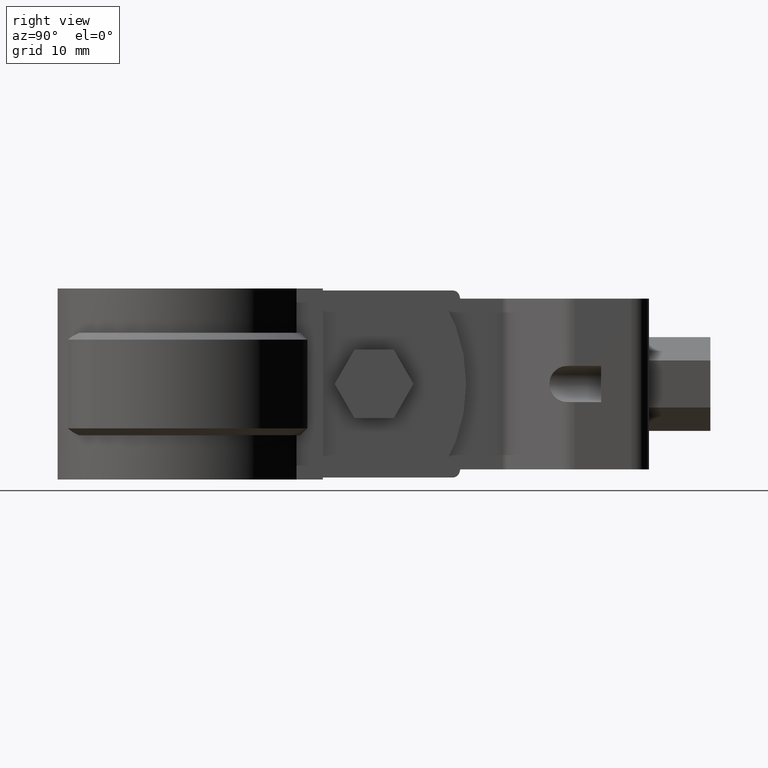
[diagram: clean part render]
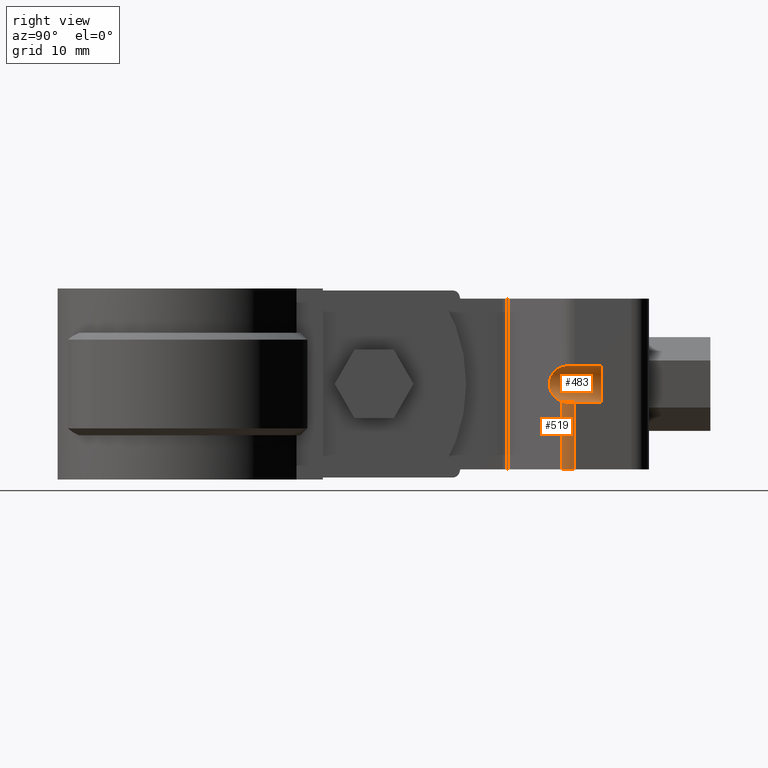
[diagram: same view with one multi-face feature highlighted, each face labeled with its STEP entity id]
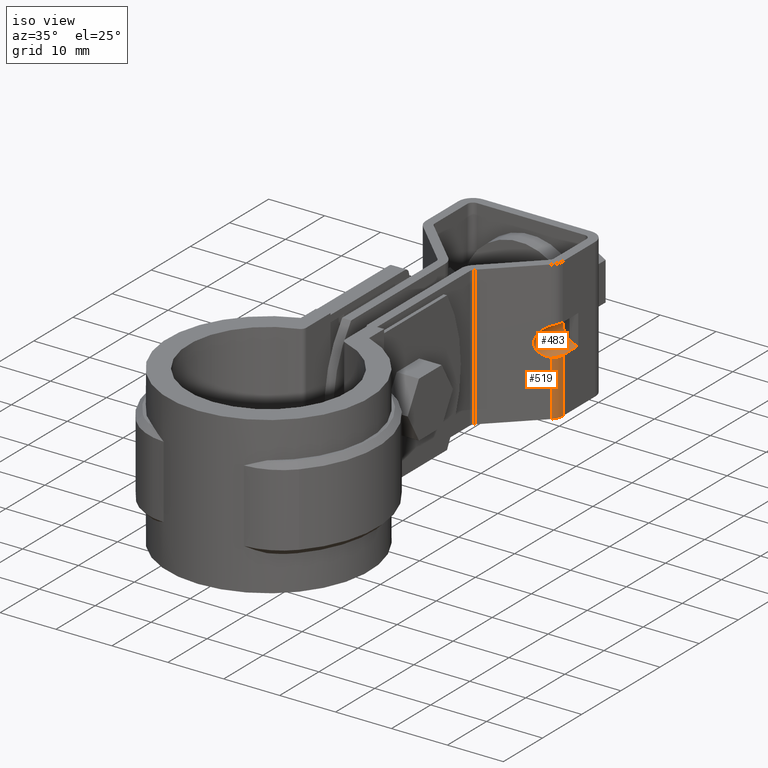
[diagram: same view with one multi-face feature highlighted, each face labeled with its STEP entity id]
A machine part, right view. The highlighted faces form ONE feature: a constant-radius fillet chain: 2 tangent blend faces with common blend radius 2.625 mm. The faces share edges in the B-rep.
A second angle (iso view) of the same feature is appended — it is thin or edge-on in the first view.
Their STEP definitions:
[1] entity #483 (Cylinder):
#483 = ADVANCED_FACE( '', ( #938 ), #939, .F. );
#938 = FACE_OUTER_BOUND( '', #2075, .T. );
#939 = CYLINDRICAL_SURFACE( '', #2076, 2.64999999999997 );
#2075 = EDGE_LOOP( '', ( #4764, #4765, #4766, #4767, #4768, #4769, #4770, #4771 ) );
#2076 = AXIS2_PLACEMENT_3D( '', #4772, #4773, #4774 );
#4764 = ORIENTED_EDGE( '', *, *, #6833, .F. );
#4765 = ORIENTED_EDGE( '', *, *, #6834, .F. );
#4766 = ORIENTED_EDGE( '', *, *, #6835, .T. );
#4767 = ORIENTED_EDGE( '', *, *, #6836, .T. );
#4768 = ORIENTED_EDGE( '', *, *, #6837, .T. );
#4769 = ORIENTED_EDGE( '', *, *, #6838, .T. );
#4770 = ORIENTED_EDGE( '', *, *, #6839, .F. );
#4771 = ORIENTED_EDGE( '', *, *, #6840, .F. );
#4772 = CARTESIAN_POINT( '', ( 12.2500001018538, 51.6019465683729, -12.4999999833285 ) );
#4773 = DIRECTION( '', ( -7.94778790044289E-010, -1.00000000000000, -1.31468003180933E-010 ) );
#4774 = DIRECTION( '', ( -3.82343921266954E-011, -1.31468003150545E-010, 1.00000000000000 ) );
#6833 = EDGE_CURVE( '', #8004, #8005, #8006, .T. );
#6834 = EDGE_CURVE( '', #8007, #8004, #8008, .T. );
#6835 = EDGE_CURVE( '', #8007, #8009, #8010, .T. );
#6836 = EDGE_CURVE( '', #8009, #8011, #8012, .T. );
#6837 = EDGE_CURVE( '', #8011, #8013, #8014, .T. );
#6838 = EDGE_CURVE( '', #8013, #8015, #8016, .T. );
#6839 = EDGE_CURVE( '', #8017, #8015, #8018, .T. );
#6840 = EDGE_CURVE( '', #8005, #8017, #8019, .T. );
#8004 = VERTEX_POINT( '', #11061 );
#8005 = VERTEX_POINT( '', #11062 );
#8006 = ELLIPSE( '', #11063, 3.70224472166266, 2.64999999999997 );
#8007 = VERTEX_POINT( '', #11064 );
#8008 = B_SPLINE_CURVE_WITH_KNOTS( '', 3, ( #11065, #11066, #11067, #11068, #11069, #11070, #11071, #11072, #11073, #11074 ), .UNSPECIFIED., .F., .F., ( 4, 2, 2, 2, 4 ), ( 0.000000000000000, 0.000517346174284563, 0.00103469234856913, 0.00155203852285369, 0.00206938469713825 ), .UNSPECIFIED. );
#8009 = VERTEX_POINT( '', #11075 );
#8010 = LINE( '', #11076, #11077 );
#8011 = VERTEX_POINT( '', #11078 );
#8012 = CIRCLE( '', #11079, 2.64999999999997 );
#8013 = VERTEX_POINT( '', #11080 );
#8014 = CIRCLE( '', #11081, 2.64999999999997 );
#8015 = VERTEX_POINT( '', #11082 );
#8016 = CIRCLE( '', #11083, 2.64999999999997 );
#8017 = VERTEX_POINT( '', #11084 );
#8018 = LINE( '', #11085, #11086 );
#8019 = B_SPLINE_CURVE_WITH_KNOTS( '', 3, ( #11087, #11088, #11089, #11090, #11091, #11092, #11093, #11094 ), .UNSPECIFIED., .F., .F., ( 4, 2, 2, 4 ), ( 1.73472347597677E-018, 0.000516787748161303, 0.00103357549632260, 0.00206715099264519 ), .UNSPECIFIED. );
#11061 = CARTESIAN_POINT( '', ( 11.4656420776956, 55.8367192606953, -15.0312610291000 ) );
#11062 = CARTESIAN_POINT( '', ( 11.4656420775021, 55.8367192600298, -9.96873893650349 ) );
#11063 = AXIS2_PLACEMENT_3D( '', #12918, #12919, #12920 );
#11064 = CARTESIAN_POINT( '', ( 12.2500001067999, 57.6977523678356, -15.1499999825271 ) );
#11065 = CARTESIAN_POINT( '', ( 12.2500001067999, 57.6977523678356, -15.1499999825271 ) );
#11066 = CARTESIAN_POINT( '', ( 12.2500001066609, 57.5228623035874, -15.1499999825500 ) );
#11067 = CARTESIAN_POINT( '', ( 12.2325331419325, 57.3509198956958, -15.1501636785781 ) );
#11068 = CARTESIAN_POINT( '', ( 12.1640564587030, 57.0127047057419, -15.1488273457981 ) );
#11069 = CARTESIAN_POINT( '', ( 12.1121298178247, 56.8445738575010, -15.1472759355092 ) );
#11070 = CARTESIAN_POINT( '', ( 11.9772120419526, 56.5255404023730, -15.1367906189000 ) );
#11071 = CARTESIAN_POINT( '', ( 11.8947255762084, 56.3745291830860, -15.1279277661973 ) );
#11072 = CARTESIAN_POINT( '', ( 11.7003963091689, 56.0897761734176, -15.0942551925598 ) );
#11073 = CARTESIAN_POINT( '', ( 11.5880225352707, 55.9561148233539, -15.0691828761320 ) );
#11074 = CARTESIAN_POINT( '', ( 11.4656420776956, 55.8367192606953, -15.0312610291000 ) );
#11075 = CARTESIAN_POINT( '', ( 12.2500001099029, 61.6019465687213, -15.1499999820138 ) );
#11076 = CARTESIAN_POINT( '', ( 12.2500001019551, 51.6019465687213, -15.1499999833285 ) );
#11077 = VECTOR( '', #12921, 1000.00000000000 );
#11078 = CARTESIAN_POINT( '', ( 10.6500001098824, 61.6019465699223, -14.6124629995027 ) );
#11079 = AXIS2_PLACEMENT_3D( '', #12922, #12923, #12924 );
#11080 = CARTESIAN_POINT( '', ( 10.6500001097209, 61.6019465693669, -10.3875369646472 ) );
#11081 = AXIS2_PLACEMENT_3D( '', #12925, #12926, #12927 );
#11082 = CARTESIAN_POINT( '', ( 12.2500001097004, 61.6019465680245, -9.84999998201383 ) );
#11083 = AXIS2_PLACEMENT_3D( '', #12928, #12929, #12930 );
#11084 = CARTESIAN_POINT( '', ( 12.2500001065974, 57.6977523671389, -9.84999998252711 ) );
#11085 = CARTESIAN_POINT( '', ( 12.2500001017526, 51.6019465680245, -9.84999998332851 ) );
#11086 = VECTOR( '', #12931, 1000.00000000000 );
#11087 = CARTESIAN_POINT( '', ( 11.4656420775021, 55.8367192600298, -9.96873893650348 ) );
#11088 = CARTESIAN_POINT( '', ( 11.5880008646473, 55.9560936807993, -9.93082380441315 ) );
#11089 = CARTESIAN_POINT( '', ( 11.6979910779007, 56.0867926460779, -9.90626131295006 ) );
#11090 = CARTESIAN_POINT( '', ( 11.8919854055865, 56.3699872667846, -9.87244984461446 ) );
#11091 = CARTESIAN_POINT( '', ( 11.9765771514112, 56.5243124652492, -9.86327471480884 ) );
#11092 = CARTESIAN_POINT( '', ( 12.1789957085563, 57.0021453969263, -9.84749562327332 ) );
#11093 = CARTESIAN_POINT( '', ( 12.2500001063196, 57.3482105250917, -9.84999998257307 ) );
#11094 = CARTESIAN_POINT( '', ( 12.2500001065974, 57.6977523671389, -9.84999998252711 ) );
#12918 = CARTESIAN_POINT( '', ( 12.2500001058277, 56.6019465683731, -12.4999999826712 ) );
#12919 = DIRECTION( '', ( -0.698323834961609, 0.715781965073521, 6.74171070251485E-011 ) );
#12920 = DIRECTION( '', ( 0.715781965073521, 0.698323834961609, 1.19159693022799E-010 ) );
#12921 = DIRECTION( '', ( 7.94778790044288E-010, 1.00000000000000, 1.31468003180933E-010 ) );
#12922 = CARTESIAN_POINT( '', ( 12.2500001098016, 61.6019465683729, -12.4999999820138 ) );
#12923 = DIRECTION( '', ( 7.94778790044288E-010, 1.00000000000000, 1.31468003180933E-010 ) );
#12924 = DIRECTION( '', ( -3.82127899098248E-011, -1.31468003150563E-010, 1.00000000000000 ) );
#12925 = CARTESIAN_POINT( '', ( 12.2500001098016, 61.6019465683729, -12.4999999820138 ) );
#12926 = DIRECTION( '', ( 7.94778790044288E-010, 1.00000000000000, 1.31468003180933E-010 ) );
#12927 = DIRECTION( '', ( -3.82127899098248E-011, -1.31468003150563E-010, 1.00000000000000 ) );
#12928 = CARTESIAN_POINT( '', ( 12.2500001098016, 61.6019465683729, -12.4999999820138 ) );
#12929 = DIRECTION( '', ( 7.94778790044288E-010, 1.00000000000000, 1.31468003180933E-010 ) );
#12930 = DIRECTION( '', ( -3.82127899098248E-011, -1.31468003150563E-010, 1.00000000000000 ) );
#12931 = DIRECTION( '', ( 7.94778790044288E-010, 1.00000000000000, 1.31468003180933E-010 ) );
[2] entity #519 (Cylinder):
#519 = ADVANCED_FACE( '', ( #1016 ), #1017, .T. );
#1016 = FACE_OUTER_BOUND( '', #2153, .T. );
#1017 = CYLINDRICAL_SURFACE( '', #2154, 2.59999999999999 );
#2153 = EDGE_LOOP( '', ( #5080, #5081, #5082, #5083 ) );
#2154 = AXIS2_PLACEMENT_3D( '', #5084, #5085, #5086 );
#5080 = ORIENTED_EDGE( '', *, *, #6926, .T. );
#5081 = ORIENTED_EDGE( '', *, *, #6919, .T. );
#5082 = ORIENTED_EDGE( '', *, *, #6853, .F. );
#5083 = ORIENTED_EDGE( '', *, *, #6834, .T. );
#5084 = CARTESIAN_POINT( '', ( 9.65000010622100, 57.6977523679104, 1.73735609232395E-008 ) );
#5085 = DIRECTION( '', ( -3.82133362428794E-011, -1.31468003150562E-010, 1.00000000000000 ) );
#5086 = DIRECTION( '', ( 7.94778790044289E-010, 1.00000000000000, 1.31468003180933E-010 ) );
#6834 = EDGE_CURVE( '', #8007, #8004, #8008, .T. );
#6853 = EDGE_CURVE( '', #8007, #8038, #8039, .T. );
#6919 = EDGE_CURVE( '', #8142, #8038, #8143, .T. );
#6926 = EDGE_CURVE( '', #8004, #8142, #8152, .T. );
#8004 = VERTEX_POINT( '', #11061 );
#8007 = VERTEX_POINT( '', #11064 );
#8008 = B_SPLINE_CURVE_WITH_KNOTS( '', 3, ( #11065, #11066, #11067, #11068, #11069, #11070, #11071, #11072, #11073, #11074 ), .UNSPECIFIED., .F., .F., ( 4, 2, 2, 2, 4 ), ( 0.000000000000000, 0.000517346174284563, 0.00103469234856913, 0.00155203852285369, 0.00206938469713825 ), .UNSPECIFIED. );
#8038 = VERTEX_POINT( '', #11131 );
#8039 = LINE( '', #11132, #11133 );
#8142 = VERTEX_POINT( '', #11303 );
#8143 = CIRCLE( '', #11304, 2.59999999999999 );
#8152 = LINE( '', #11317, #11318 );
#11061 = CARTESIAN_POINT( '', ( 11.4656420776956, 55.8367192606953, -15.0312610291000 ) );
#11064 = CARTESIAN_POINT( '', ( 12.2500001067999, 57.6977523678356, -15.1499999825271 ) );
#11065 = CARTESIAN_POINT( '', ( 12.2500001067999, 57.6977523678356, -15.1499999825271 ) );
#11066 = CARTESIAN_POINT( '', ( 12.2500001066609, 57.5228623035874, -15.1499999825500 ) );
#11067 = CARTESIAN_POINT( '', ( 12.2325331419325, 57.3509198956958, -15.1501636785781 ) );
#11068 = CARTESIAN_POINT( '', ( 12.1640564587030, 57.0127047057419, -15.1488273457981 ) );
#11069 = CARTESIAN_POINT( '', ( 12.1121298178247, 56.8445738575010, -15.1472759355092 ) );
#11070 = CARTESIAN_POINT( '', ( 11.9772120419526, 56.5255404023730, -15.1367906189000 ) );
#11071 = CARTESIAN_POINT( '', ( 11.8947255762084, 56.3745291830860, -15.1279277661973 ) );
#11072 = CARTESIAN_POINT( '', ( 11.7003963091689, 56.0897761734176, -15.0942551925598 ) );
#11073 = CARTESIAN_POINT( '', ( 11.5880225352707, 55.9561148233539, -15.0691828761320 ) );
#11074 = CARTESIAN_POINT( '', ( 11.4656420776956, 55.8367192606953, -15.0312610291000 ) );
#11131 = CARTESIAN_POINT( '', ( 12.2500001071763, 57.6977523691307, -24.9999999825271 ) );
#11132 = CARTESIAN_POINT( '', ( 12.2500001062210, 57.6977523658440, 1.74729120061556E-008 ) );
#11133 = VECTOR( '', #12946, 1000.00000000000 );
#11303 = CARTESIAN_POINT( '', ( 11.4656420780765, 55.8367192620060, -24.9999999828017 ) );
#11304 = AXIS2_PLACEMENT_3D( '', #13048, #13049, #13050 );
#11317 = CARTESIAN_POINT( '', ( 11.4656420771212, 55.8367192587193, 1.71982705854390E-008 ) );
#11318 = VECTOR( '', #13061, 1000.00000000000 );
#12946 = DIRECTION( '', ( 3.82133362428794E-011, 1.31468003150562E-010, -1.00000000000000 ) );
#13048 = CARTESIAN_POINT( '', ( 9.65000010717634, 57.6977523711971, -24.9999999826264 ) );
#13049 = DIRECTION( '', ( -3.82133362428794E-011, -1.31468003150562E-010, 1.00000000000000 ) );
#13050 = DIRECTION( '', ( 0.698323834961612, -0.715781965073519, -6.74171421275957E-011 ) );
#13061 = DIRECTION( '', ( 3.82133362428794E-011, 1.31468003150562E-010, -1.00000000000000 ) );